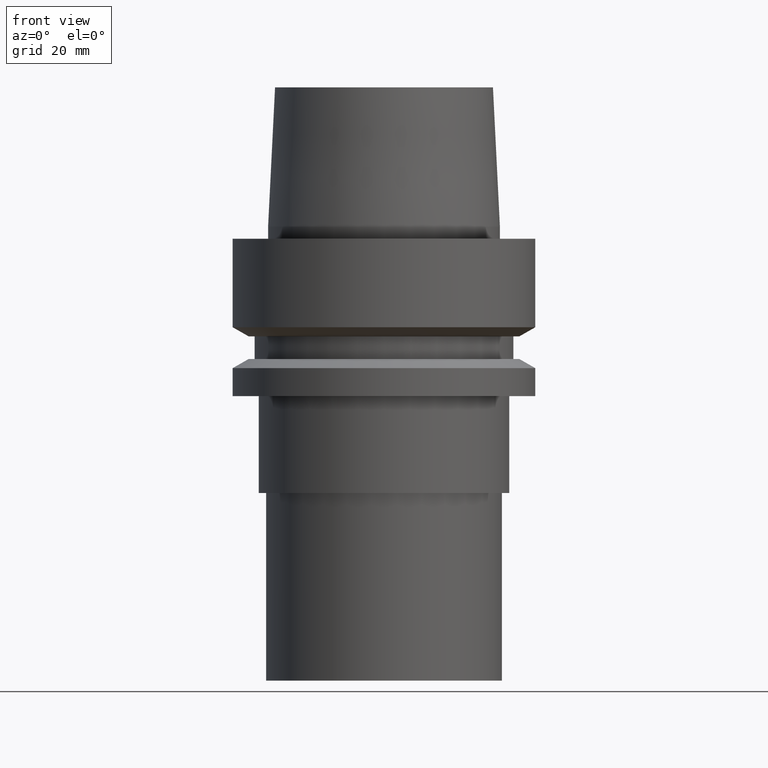
[diagram: clean part render]
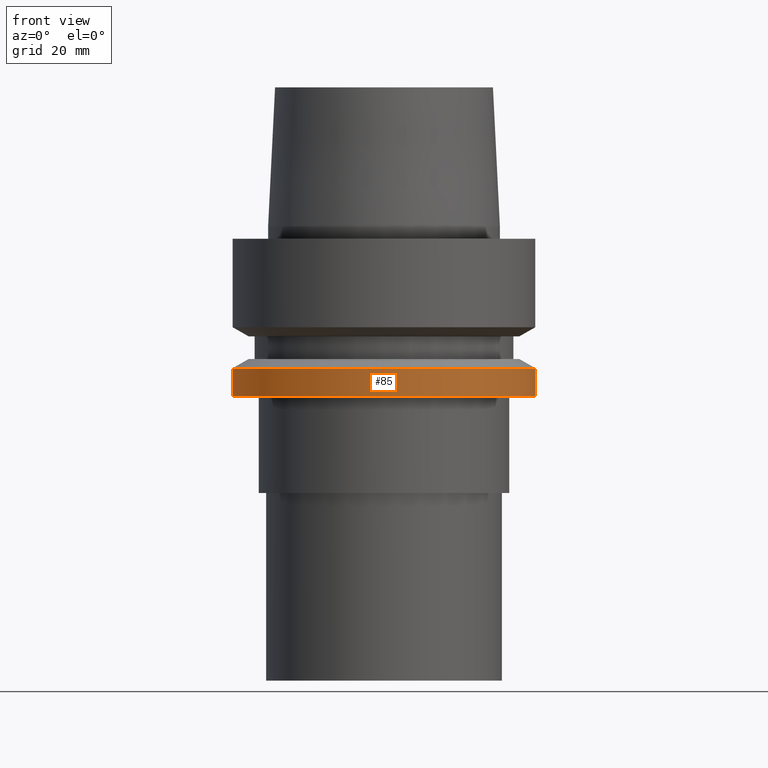
[diagram: same view with one face highlighted and labeled with its STEP entity id]
A machine part, front view. The second image highlights one B-rep face of the part: STEP entity #85.
In plain terms, the highlighted cylindrical surface (bore or boss wall) has radius 25 mm, axis along (-0, -0, 1).
Its self-contained STEP definition (entity closure, byte-faithful):
#85=ADVANCED_FACE('',(#121,#122),#123,.T.);
#121=FACE_BOUND('',#167,.T.);
#122=FACE_BOUND('',#168,.T.);
#123=CYLINDRICAL_SURFACE('',#169,25.0);
#167=EDGE_LOOP('',(#233));
#168=EDGE_LOOP('',(#234));
#169=AXIS2_PLACEMENT_3D('',#235,#236,#237);
#233=ORIENTED_EDGE('',*,*,#272,.F.);
#234=ORIENTED_EDGE('',*,*,#271,.T.);
#235=CARTESIAN_POINT('',(1.45051756469206E-015,2.90103512938411E-015,-23.688749535));
#236=DIRECTION('',(-6.12323399573677E-017,-1.22464679914735E-016,1.0));
#237=DIRECTION('',(-1.23259516440783E-032,1.0,1.22464679914735E-016));
#271=EDGE_CURVE('',#295,#295,#296,.T.);
#272=EDGE_CURVE('',#297,#297,#298,.T.);
#295=VERTEX_POINT('',#325);
#296=CIRCLE('',#326,25.0);
#297=VERTEX_POINT('',#327);
#298=CIRCLE('',#328,25.0);
#325=CARTESIAN_POINT('',(1.30899429049255E-015,25.0,-21.37749907));
#326=AXIS2_PLACEMENT_3D('',#364,#365,#366);
#327=CARTESIAN_POINT('',(1.59204083889156E-015,25.0,-26.0));
#328=AXIS2_PLACEMENT_3D('',#367,#368,#369);
#364=CARTESIAN_POINT('',(1.30899429049255E-015,2.6179885809851E-015,-21.37749907));
#365=DIRECTION('',(6.12323399573677E-017,1.22464679914735E-016,-1.0));
#366=DIRECTION('',(-1.23259516440783E-032,1.0,1.22464679914735E-016));
#367=CARTESIAN_POINT('',(1.59204083889156E-015,3.18408167778312E-015,-26.0));
#368=DIRECTION('',(6.12323399573677E-017,1.22464679914735E-016,-1.0));
#369=DIRECTION('',(-1.23259516440783E-032,1.0,1.22464679914735E-016));